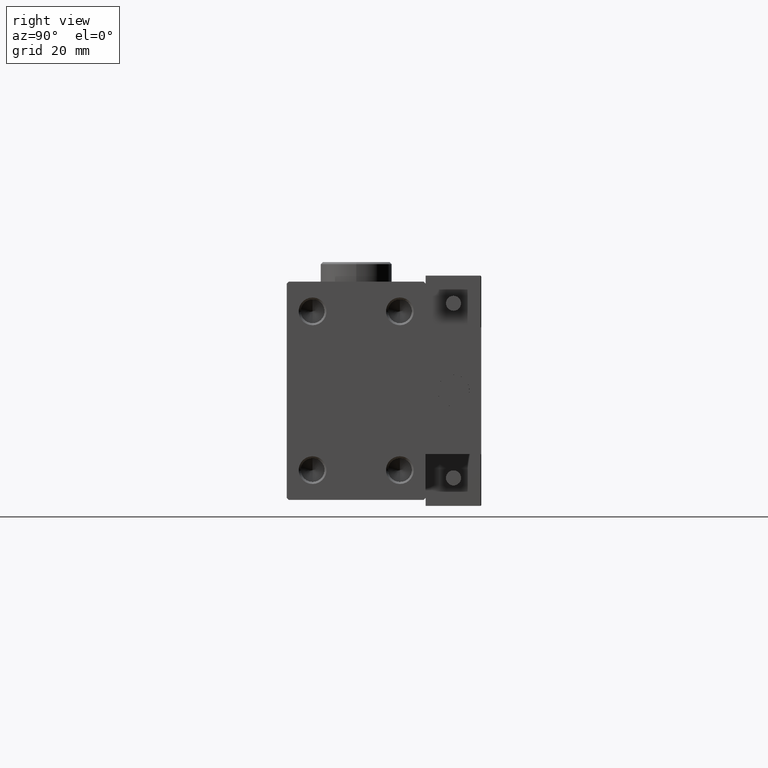
[diagram: clean part render]
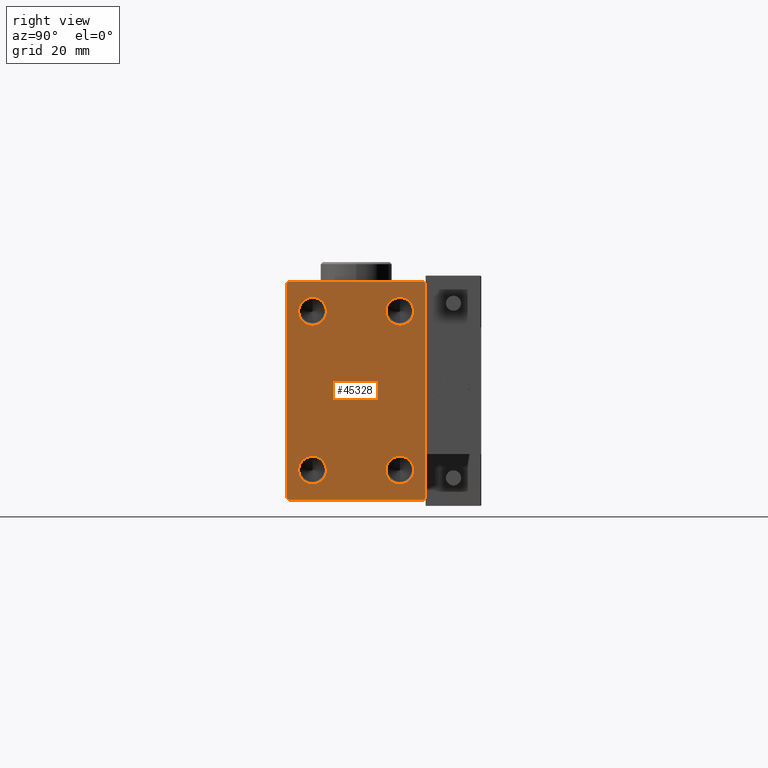
[diagram: same view with one face highlighted and labeled with its STEP entity id]
A machine part, right view. The second image highlights one B-rep face of the part: STEP entity #45328.
In plain terms, the highlighted planar face has unit normal (1, 0, 0).
Its self-contained STEP definition (entity closure, byte-faithful):
#328 = CIRCLE ( 'NONE', #26659, 3.499999999999989342 ) ;
#815 = LINE ( 'NONE', #33743, #27354 ) ;
#1448 = DIRECTION ( 'NONE',  ( 1.000000000000000000, -0.000000000000000000, -0.000000000000000000 ) ) ;
#1566 = AXIS2_PLACEMENT_3D ( 'NONE', #20251, #19987, #12544 ) ;
#1798 = EDGE_CURVE ( 'NONE', #19142, #47972, #34371, .T. ) ;
#2596 = EDGE_CURVE ( 'NONE', #12716, #9048, #22878, .T. ) ;
#2955 = CARTESIAN_POINT ( 'NONE',  ( 96.00000000000000000, 17.00000000000001421, 27.49999999999999289 ) ) ;
#2996 = ORIENTED_EDGE ( 'NONE', *, *, #9108, .T. ) ;
#3139 = EDGE_CURVE ( 'NONE', #14662, #37672, #9869, .T. ) ;
#4503 = CIRCLE ( 'NONE', #31668, 3.499999999999989342 ) ;
#4521 = LINE ( 'NONE', #44887, #15607 ) ;
#5084 = FACE_BOUND ( 'NONE', #21183, .T. ) ;
#5302 = CARTESIAN_POINT ( 'NONE',  ( 96.00000000000000000, -11.00000000000000533, -20.00000000000000000 ) ) ;
#5791 = VERTEX_POINT ( 'NONE', #23662 ) ;
#6588 = CARTESIAN_POINT ( 'NONE',  ( 96.00000000000000000, 11.00000000000000178, 20.00000000000000711 ) ) ;
#7283 = EDGE_CURVE ( 'NONE', #28146, #35391, #8314, .T. ) ;
#7318 = CARTESIAN_POINT ( 'NONE',  ( 96.00000000000000000, 17.50000000000000711, -26.99999999999998224 ) ) ;
#7465 = CARTESIAN_POINT ( 'NONE',  ( 96.00000000000000000, -17.00000000000000711, -27.50000000000000711 ) ) ;
#7683 = CARTESIAN_POINT ( 'NONE',  ( 96.00000000000000000, 16.99999999999997868, -27.50000000000001066 ) ) ;
#7758 = EDGE_LOOP ( 'NONE', ( #48696, #26964, #28296, #19513, #38392, #50233, #2996, #33734 ) ) ;
#7985 = CIRCLE ( 'NONE', #44443, 3.499999999999989342 ) ;
#8302 = CIRCLE ( 'NONE', #40535, 3.499999999999989342 ) ;
#8314 = CIRCLE ( 'NONE', #49850, 3.499999999999989342 ) ;
#8334 = CARTESIAN_POINT ( 'NONE',  ( 96.00000000000000000, 11.00000000000000178, -20.00000000000000000 ) ) ;
#8437 = DIRECTION ( 'NONE',  ( -0.000000000000000000, -0.7071067811865500152, 0.7071067811865451302 ) ) ;
#8498 = DIRECTION ( 'NONE',  ( 0.000000000000000000, -0.7071067811865474617, -0.7071067811865474617 ) ) ;
#8706 = EDGE_CURVE ( 'NONE', #20557, #29705, #34673, .T. ) ;
#8856 = VECTOR ( 'NONE', #8498, 1000.000000000000114 ) ;
#8907 = CARTESIAN_POINT ( 'NONE',  ( 96.00000000000000000, -11.00000000000000533, 20.00000000000000711 ) ) ;
#8918 = CARTESIAN_POINT ( 'NONE',  ( 96.00000000000000000, 22.24999999999999289, -22.24999999999999289 ) ) ;
#9048 = VERTEX_POINT ( 'NONE', #7465 ) ;
#9053 = DIRECTION ( 'NONE',  ( 0.000000000000000000, -1.000000000000000000, -1.982541115402065356E-16 ) ) ;
#9108 = EDGE_CURVE ( 'NONE', #29508, #11587, #36130, .T. ) ;
#9869 = CIRCLE ( 'NONE', #17466, 3.499999999999989342 ) ;
#10138 = DIRECTION ( 'NONE',  ( -0.000000000000000000, 0.7071067811865378028, -0.7071067811865573427 ) ) ;
#10665 = CARTESIAN_POINT ( 'NONE',  ( 96.00000000000000000, -17.49999999999999645, 26.99999999999997158 ) ) ;
#10847 = EDGE_LOOP ( 'NONE', ( #22883, #15709 ) ) ;
#10848 = DIRECTION ( 'NONE',  ( 0.000000000000000000, 0.000000000000000000, -1.000000000000000000 ) ) ;
#11587 = VERTEX_POINT ( 'NONE', #26417 ) ;
#11986 = VECTOR ( 'NONE', #42480, 1000.000000000000000 ) ;
#12544 = DIRECTION ( 'NONE',  ( 0.000000000000000000, 0.000000000000000000, -1.000000000000000000 ) ) ;
#12716 = VERTEX_POINT ( 'NONE', #43145 ) ;
#13701 = ORIENTED_EDGE ( 'NONE', *, *, #15879, .F. ) ;
#14303 = VERTEX_POINT ( 'NONE', #10665 ) ;
#14662 = VERTEX_POINT ( 'NONE', #28123 ) ;
#15397 = PLANE ( 'NONE',  #39314 ) ;
#15607 = VECTOR ( 'NONE', #40136, 1000.000000000000000 ) ;
#15709 = ORIENTED_EDGE ( 'NONE', *, *, #32572, .F. ) ;
#15819 = CARTESIAN_POINT ( 'NONE',  ( 96.00000000000000000, -11.00000000000000533, -20.00000000000000000 ) ) ;
#15879 = EDGE_CURVE ( 'NONE', #47972, #19142, #8302, .T. ) ;
#16166 = CARTESIAN_POINT ( 'NONE',  ( 96.00000000000000000, 0.000000000000000000, 0.000000000000000000 ) ) ;
#16200 = LINE ( 'NONE', #32417, #8856 ) ;
#16420 = DIRECTION ( 'NONE',  ( 0.000000000000000000, 0.000000000000000000, -1.000000000000000000 ) ) ;
#16445 = DIRECTION ( 'NONE',  ( 0.000000000000000000, -1.261617073437677752E-16, 1.000000000000000000 ) ) ;
#17284 = FACE_BOUND ( 'NONE', #10847, .T. ) ;
#17466 = AXIS2_PLACEMENT_3D ( 'NONE', #15819, #20333, #24063 ) ;
#17943 = EDGE_LOOP ( 'NONE', ( #13701, #30325 ) ) ;
#18434 = ORIENTED_EDGE ( 'NONE', *, *, #46624, .F. ) ;
#19142 = VERTEX_POINT ( 'NONE', #22795 ) ;
#19345 = DIRECTION ( 'NONE',  ( 0.000000000000000000, 0.000000000000000000, -1.000000000000000000 ) ) ;
#19513 = ORIENTED_EDGE ( 'NONE', *, *, #2596, .T. ) ;
#19643 = DIRECTION ( 'NONE',  ( 1.000000000000000000, 0.000000000000000000, 0.000000000000000000 ) ) ;
#19831 = CARTESIAN_POINT ( 'NONE',  ( 96.00000000000000000, 11.00000000000000178, -16.50000000000000711 ) ) ;
#19987 = DIRECTION ( 'NONE',  ( 1.000000000000000000, -0.000000000000000000, -0.000000000000000000 ) ) ;
#20251 = CARTESIAN_POINT ( 'NONE',  ( 96.00000000000000000, 11.00000000000000178, 20.00000000000000711 ) ) ;
#20333 = DIRECTION ( 'NONE',  ( 1.000000000000000000, -0.000000000000000000, -0.000000000000000000 ) ) ;
#20557 = VERTEX_POINT ( 'NONE', #32157 ) ;
#20775 = FACE_BOUND ( 'NONE', #17943, .T. ) ;
#21183 = EDGE_LOOP ( 'NONE', ( #45470, #49900 ) ) ;
#21290 = FACE_BOUND ( 'NONE', #22400, .T. ) ;
#21328 = VECTOR ( 'NONE', #42364, 1000.000000000000114 ) ;
#22400 = EDGE_LOOP ( 'NONE', ( #18434, #33861 ) ) ;
#22795 = CARTESIAN_POINT ( 'NONE',  ( 96.00000000000000000, -11.00000000000000533, 16.50000000000001421 ) ) ;
#22878 = LINE ( 'NONE', #26345, #42890 ) ;
#22883 = ORIENTED_EDGE ( 'NONE', *, *, #3139, .F. ) ;
#23560 = VERTEX_POINT ( 'NONE', #7683 ) ;
#23662 = CARTESIAN_POINT ( 'NONE',  ( 96.00000000000000000, -16.99999999999997868, 27.49999999999998579 ) ) ;
#24063 = DIRECTION ( 'NONE',  ( 0.000000000000000000, 0.000000000000000000, -1.000000000000000000 ) ) ;
#24114 = EDGE_CURVE ( 'NONE', #23560, #29508, #49537, .T. ) ;
#24219 = AXIS2_PLACEMENT_3D ( 'NONE', #50941, #39531, #19345 ) ;
#24993 = DIRECTION ( 'NONE',  ( 1.000000000000000000, -0.000000000000000000, -0.000000000000000000 ) ) ;
#26345 = CARTESIAN_POINT ( 'NONE',  ( 96.00000000000000000, -22.25000000000024514, -22.24999999999963052 ) ) ;
#26417 = CARTESIAN_POINT ( 'NONE',  ( 96.00000000000000000, 17.50000000000000000, 27.00000000000001066 ) ) ;
#26659 = AXIS2_PLACEMENT_3D ( 'NONE', #8334, #40218, #44447 ) ;
#26737 = CARTESIAN_POINT ( 'NONE',  ( 96.00000000000000000, 11.00000000000000178, -20.00000000000000000 ) ) ;
#26964 = ORIENTED_EDGE ( 'NONE', *, *, #50793, .T. ) ;
#27060 = DIRECTION ( 'NONE',  ( 1.000000000000000000, -0.000000000000000000, -0.000000000000000000 ) ) ;
#27354 = VECTOR ( 'NONE', #9053, 1000.000000000000000 ) ;
#28123 = CARTESIAN_POINT ( 'NONE',  ( 96.00000000000000000, -11.00000000000000533, -16.50000000000000711 ) ) ;
#28146 = VERTEX_POINT ( 'NONE', #34205 ) ;
#28296 = ORIENTED_EDGE ( 'NONE', *, *, #40130, .T. ) ;
#28650 = CARTESIAN_POINT ( 'NONE',  ( 96.00000000000000000, 22.24999999999994316, 22.25000000000009592 ) ) ;
#28987 = DIRECTION ( 'NONE',  ( 0.000000000000000000, 0.000000000000000000, -1.000000000000000000 ) ) ;
#29508 = VERTEX_POINT ( 'NONE', #7318 ) ;
#29705 = VERTEX_POINT ( 'NONE', #29857 ) ;
#29857 = CARTESIAN_POINT ( 'NONE',  ( 96.00000000000000000, 11.00000000000000178, 16.50000000000001421 ) ) ;
#30325 = ORIENTED_EDGE ( 'NONE', *, *, #1798, .F. ) ;
#31668 = AXIS2_PLACEMENT_3D ( 'NONE', #6588, #27060, #10848 ) ;
#31916 = EDGE_CURVE ( 'NONE', #11587, #39091, #36597, .T. ) ;
#32157 = CARTESIAN_POINT ( 'NONE',  ( 96.00000000000000000, 11.00000000000000178, 23.50000000000000000 ) ) ;
#32417 = CARTESIAN_POINT ( 'NONE',  ( 96.00000000000000000, -22.24999999999998224, 22.24999999999998224 ) ) ;
#32505 = EDGE_CURVE ( 'NONE', #9048, #23560, #4521, .T. ) ;
#32572 = EDGE_CURVE ( 'NONE', #37672, #14662, #7985, .T. ) ;
#33734 = ORIENTED_EDGE ( 'NONE', *, *, #31916, .T. ) ;
#33743 = CARTESIAN_POINT ( 'NONE',  ( 96.00000000000000000, 17.50000000000000000, 27.49999999999999289 ) ) ;
#33861 = ORIENTED_EDGE ( 'NONE', *, *, #7283, .F. ) ;
#33981 = CARTESIAN_POINT ( 'NONE',  ( 96.00000000000000000, -17.49999999999999645, 27.49999999999998579 ) ) ;
#34205 = CARTESIAN_POINT ( 'NONE',  ( 96.00000000000000000, 11.00000000000000178, -23.49999999999999289 ) ) ;
#34246 = LINE ( 'NONE', #33981, #11986 ) ;
#34371 = CIRCLE ( 'NONE', #24219, 3.499999999999989342 ) ;
#34504 = VECTOR ( 'NONE', #16445, 1000.000000000000000 ) ;
#34673 = CIRCLE ( 'NONE', #1566, 3.499999999999989342 ) ;
#35391 = VERTEX_POINT ( 'NONE', #19831 ) ;
#36130 = LINE ( 'NONE', #36393, #34504 ) ;
#36393 = CARTESIAN_POINT ( 'NONE',  ( 96.00000000000000000, 17.50000000000000711, -27.50000000000001066 ) ) ;
#36597 = LINE ( 'NONE', #28650, #41868 ) ;
#37672 = VERTEX_POINT ( 'NONE', #51466 ) ;
#38392 = ORIENTED_EDGE ( 'NONE', *, *, #32505, .T. ) ;
#39091 = VERTEX_POINT ( 'NONE', #2955 ) ;
#39314 = AXIS2_PLACEMENT_3D ( 'NONE', #16166, #19643, #16420 ) ;
#39531 = DIRECTION ( 'NONE',  ( 1.000000000000000000, -0.000000000000000000, -0.000000000000000000 ) ) ;
#40130 = EDGE_CURVE ( 'NONE', #14303, #12716, #34246, .T. ) ;
#40136 = DIRECTION ( 'NONE',  ( 0.000000000000000000, 1.000000000000000000, -9.912705577010325549E-17 ) ) ;
#40218 = DIRECTION ( 'NONE',  ( 1.000000000000000000, -0.000000000000000000, -0.000000000000000000 ) ) ;
#40535 = AXIS2_PLACEMENT_3D ( 'NONE', #8907, #1448, #49524 ) ;
#41868 = VECTOR ( 'NONE', #8437, 1000.000000000000114 ) ;
#42276 = EDGE_CURVE ( 'NONE', #39091, #5791, #815, .T. ) ;
#42364 = DIRECTION ( 'NONE',  ( -0.000000000000000000, 0.7071067811865474617, 0.7071067811865474617 ) ) ;
#42480 = DIRECTION ( 'NONE',  ( 0.000000000000000000, 0.000000000000000000, -1.000000000000000000 ) ) ;
#42890 = VECTOR ( 'NONE', #10138, 1000.000000000000000 ) ;
#43145 = CARTESIAN_POINT ( 'NONE',  ( 96.00000000000000000, -17.49999999999999645, -27.00000000000000711 ) ) ;
#43449 = DIRECTION ( 'NONE',  ( 1.000000000000000000, -0.000000000000000000, -0.000000000000000000 ) ) ;
#44427 = EDGE_CURVE ( 'NONE', #29705, #20557, #4503, .T. ) ;
#44443 = AXIS2_PLACEMENT_3D ( 'NONE', #5302, #24993, #28987 ) ;
#44447 = DIRECTION ( 'NONE',  ( 0.000000000000000000, 0.000000000000000000, -1.000000000000000000 ) ) ;
#44887 = CARTESIAN_POINT ( 'NONE',  ( 96.00000000000000000, -17.49999999999999645, -27.50000000000000711 ) ) ;
#45328 = ADVANCED_FACE ( 'NONE', ( #5084, #20775, #17284, #21290, #48300 ), #15397, .T. ) ;
#45470 = ORIENTED_EDGE ( 'NONE', *, *, #8706, .F. ) ;
#46624 = EDGE_CURVE ( 'NONE', #35391, #28146, #328, .T. ) ;
#46632 = DIRECTION ( 'NONE',  ( 0.000000000000000000, 0.000000000000000000, -1.000000000000000000 ) ) ;
#47972 = VERTEX_POINT ( 'NONE', #48317 ) ;
#48300 = FACE_OUTER_BOUND ( 'NONE', #7758, .T. ) ;
#48317 = CARTESIAN_POINT ( 'NONE',  ( 96.00000000000000000, -11.00000000000000533, 23.50000000000000000 ) ) ;
#48696 = ORIENTED_EDGE ( 'NONE', *, *, #42276, .T. ) ;
#49524 = DIRECTION ( 'NONE',  ( 0.000000000000000000, 0.000000000000000000, -1.000000000000000000 ) ) ;
#49537 = LINE ( 'NONE', #8918, #21328 ) ;
#49850 = AXIS2_PLACEMENT_3D ( 'NONE', #26737, #43449, #46632 ) ;
#49900 = ORIENTED_EDGE ( 'NONE', *, *, #44427, .F. ) ;
#50233 = ORIENTED_EDGE ( 'NONE', *, *, #24114, .T. ) ;
#50793 = EDGE_CURVE ( 'NONE', #5791, #14303, #16200, .T. ) ;
#50941 = CARTESIAN_POINT ( 'NONE',  ( 96.00000000000000000, -11.00000000000000533, 20.00000000000000711 ) ) ;
#51466 = CARTESIAN_POINT ( 'NONE',  ( 96.00000000000000000, -11.00000000000000533, -23.49999999999999289 ) ) ;